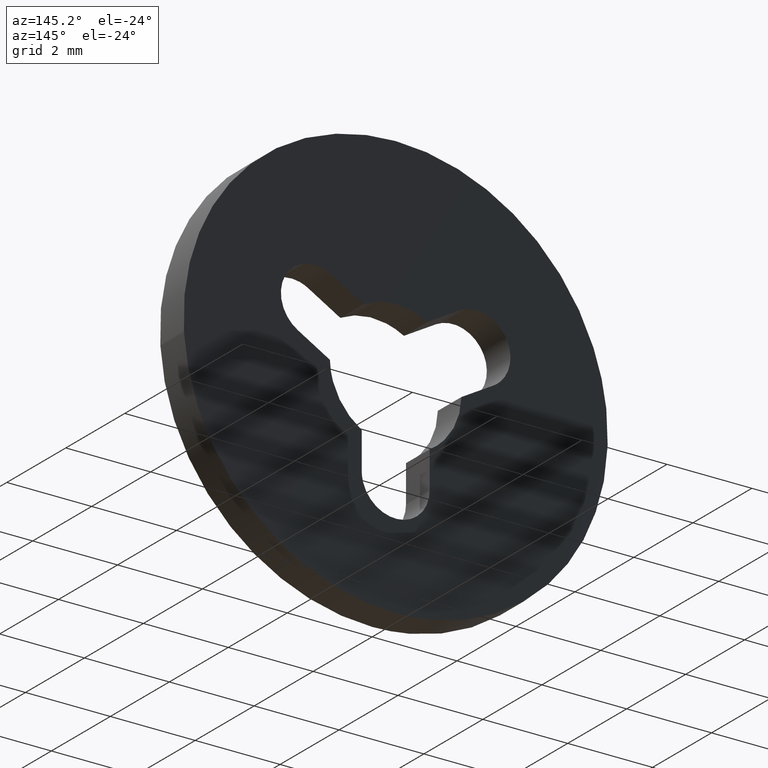
[diagram: clean part render]
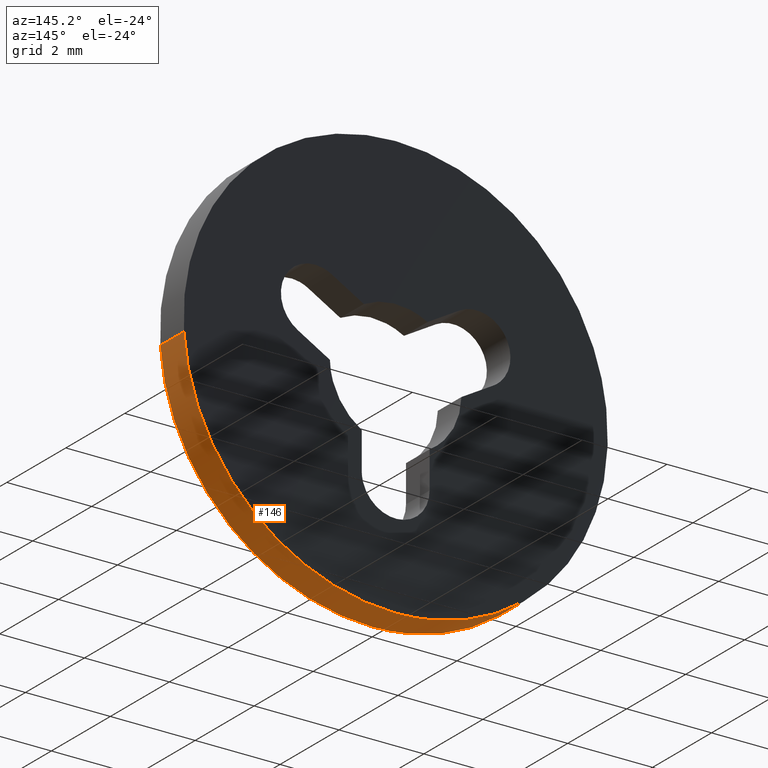
[diagram: same view with one face highlighted and labeled with its STEP entity id]
A machine part, auxiliary view. The second image highlights one B-rep face of the part: STEP entity #146.
In plain terms, the highlighted face is a freeform B-spline surface patch.
Its self-contained STEP definition (entity closure, byte-faithful):
#44=CARTESIAN_POINT('',(-4.965047631818332,0.820000000000024,0.590171173283792));
#45=CARTESIAN_POINT('',(-4.981938077243028,0.820000000000024,0.448073643189888));
#46=CARTESIAN_POINT('',(-4.990673992109334,0.820000000000024,0.305242697674285));
#47=CARTESIAN_POINT('',(-5.295916689783620,0.820000000000024,-4.685431294435048));
#48=CARTESIAN_POINT('',(-0.305242697674285,0.820000000000024,-4.990673992109334));
#49=CARTESIAN_POINT('',(4.685431294435048,0.820000000000024,-5.295916689783620));
#50=CARTESIAN_POINT('',(4.990673992109334,0.820000000000024,-0.305242697674285));
#51=CARTESIAN_POINT('',(-4.965047631818332,-0.020500000000001,0.590171173283792));
#52=CARTESIAN_POINT('',(-4.981938077243028,-0.020500000000001,0.448073643189888));
#53=CARTESIAN_POINT('',(-4.990673992109334,-0.020500000000001,0.305242697674285));
#54=CARTESIAN_POINT('',(-5.295916689783620,-0.020500000000001,-4.685431294435048));
#55=CARTESIAN_POINT('',(-0.305242697674285,-0.020500000000001,-4.990673992109334));
#56=CARTESIAN_POINT('',(4.685431294435048,-0.020500000000001,-5.295916689783620));
#57=CARTESIAN_POINT('',(4.990673992109334,-0.020500000000001,-0.305242697674285));
#65=(BOUNDED_SURFACE()B_SPLINE_SURFACE(2,1,((#44,#51),(#45,#52),(#46,#53),(#47,#54),(#48,#55),(#49,#56),(#50,#57)),.UNSPECIFIED.,.F.,.F.,.U.)B_SPLINE_SURFACE_WITH_KNOTS((3,2,2,3),(2,2),(0.0,0.331370849898476,8.615642097360375,16.899913344822270),(0.0,1.0),.UNSPECIFIED.)GEOMETRIC_REPRESENTATION_ITEM()RATIONAL_B_SPLINE_SURFACE(((0.977505800795127,0.977505800795127),(0.988284271247462,0.988284271247462),(1.0,1.0),(0.707106781186548,0.707106781186548),(1.0,1.0),(0.707106781186548,0.707106781186548),(1.0,1.0)))REPRESENTATION_ITEM('')SURFACE());
#66=CARTESIAN_POINT('',(-4.965048007634929,3.045997E-014,0.590168011561354));
#67=VERTEX_POINT('',#66);
#68=CARTESIAN_POINT('',(0.0,0.0,-5.0));
#69=VERTEX_POINT('',#68);
#70=CARTESIAN_POINT('',(-4.965048007634929,3.045997E-014,0.590168011561354));
#71=CARTESIAN_POINT('',(-5.000000000000001,0.0,0.296119000685819));
#72=CARTESIAN_POINT('',(-5.0,0.0,0.0));
#73=CARTESIAN_POINT('',(-5.000000000000001,0.0,-5.000000000000001));
#74=CARTESIAN_POINT('',(0.0,0.0,-5.0));
#82=(BOUNDED_CURVE()B_SPLINE_CURVE(2,(#70,#71,#72,#73,#74),.UNSPECIFIED.,.F.,.U.)B_SPLINE_CURVE_WITH_KNOTS((3,2,3),(0.229562581136241,0.250000000000000,0.500000000000000),.UNSPECIFIED.)CURVE()GEOMETRIC_REPRESENTATION_ITEM()RATIONAL_B_SPLINE_CURVE((0.956026965128767,0.976056074419019,1.0,0.707106781186548,1.0))REPRESENTATION_ITEM(''));
#83=EDGE_CURVE('',#67,#69,#82,.T.);
#84=ORIENTED_EDGE('',*,*,#83,.F.);
#85=CARTESIAN_POINT('',(-4.965048002999415,0.800000000000023,0.590168050559857));
#86=VERTEX_POINT('',#85);
#87=CARTESIAN_POINT('',(-4.965048002999415,0.800000000000023,0.590168050559857));
#88=CARTESIAN_POINT('',(-4.965048007634929,3.045997E-014,0.590168011561354));
#89=QUASI_UNIFORM_CURVE('',1,(#87,#88),.UNSPECIFIED.,.F.,.U.);
#90=EDGE_CURVE('',#86,#67,#89,.T.);
#91=ORIENTED_EDGE('',*,*,#90,.F.);
#92=CARTESIAN_POINT('',(0.0,0.800000000000023,-5.0));
#93=VERTEX_POINT('',#92);
#94=CARTESIAN_POINT('',(-4.965048002999415,0.800000000000023,0.590168050559856));
#95=CARTESIAN_POINT('',(-5.0,0.800000000000023,0.296119020391210));
#96=CARTESIAN_POINT('',(-5.0,0.800000000000023,0.0));
#97=CARTESIAN_POINT('',(-5.000000000000001,0.800000000000023,-5.000000000000001));
#98=CARTESIAN_POINT('',(0.0,0.800000000000023,-5.0));
#106=(BOUNDED_CURVE()B_SPLINE_CURVE(2,(#94,#95,#96,#97,#98),.UNSPECIFIED.,.F.,.U.)B_SPLINE_CURVE_WITH_KNOTS((3,2,3),(0.229562579808786,0.250000000000000,0.500000000000000),.UNSPECIFIED.)CURVE()GEOMETRIC_REPRESENTATION_ITEM()RATIONAL_B_SPLINE_CURVE((0.956026962526900,0.976056072863809,1.0,0.707106781186548,1.0))REPRESENTATION_ITEM(''));
#107=EDGE_CURVE('',#86,#93,#106,.T.);
#108=ORIENTED_EDGE('',*,*,#107,.T.);
#109=CARTESIAN_POINT('',(4.990674099992546,0.800000000000023,-0.305240933789139));
#110=VERTEX_POINT('',#109);
#111=CARTESIAN_POINT('',(0.0,0.800000000000023,-5.0));
#112=CARTESIAN_POINT('',(4.703532000033385,0.800000000000023,-5.000000000000001));
#113=CARTESIAN_POINT('',(4.990674099992546,0.800000000000023,-0.305240933789139));
#121=(BOUNDED_CURVE()B_SPLINE_CURVE(2,(#111,#112,#113),.UNSPECIFIED.,.F.,.U.)B_SPLINE_CURVE_WITH_KNOTS((3,3),(0.500000000000000,0.739333023226263),.UNSPECIFIED.)CURVE()GEOMETRIC_REPRESENTATION_ITEM()RATIONAL_B_SPLINE_CURVE((1.0,0.719603921835620,0.976072172374189))REPRESENTATION_ITEM(''));
#122=EDGE_CURVE('',#93,#110,#121,.T.);
#123=ORIENTED_EDGE('',*,*,#122,.T.);
#124=CARTESIAN_POINT('',(4.990674101339240,2.014708E-014,-0.305240911770624));
#125=VERTEX_POINT('',#124);
#126=CARTESIAN_POINT('',(4.990674099992546,0.800000000000023,-0.305240933789139));
#127=CARTESIAN_POINT('',(4.990674101339240,2.014708E-014,-0.305240911770624));
#128=QUASI_UNIFORM_CURVE('',1,(#126,#127),.UNSPECIFIED.,.F.,.U.);
#129=EDGE_CURVE('',#110,#125,#128,.T.);
#130=ORIENTED_EDGE('',*,*,#129,.T.);
#131=CARTESIAN_POINT('',(0.0,0.0,-5.0));
#132=CARTESIAN_POINT('',(4.703532020823824,0.0,-4.999999999999999));
#133=CARTESIAN_POINT('',(4.990674101339240,2.014708E-014,-0.305240911770624));
#141=(BOUNDED_CURVE()B_SPLINE_CURVE(2,(#131,#132,#133),.UNSPECIFIED.,.F.,.U.)B_SPLINE_CURVE_WITH_KNOTS((3,3),(0.500000000000000,0.739333023987528),.UNSPECIFIED.)CURVE()GEOMETRIC_REPRESENTATION_ITEM()RATIONAL_B_SPLINE_CURVE((1.0,0.719603920943743,0.976072174005725))REPRESENTATION_ITEM(''));
#142=EDGE_CURVE('',#69,#125,#141,.T.);
#143=ORIENTED_EDGE('',*,*,#142,.F.);
#144=EDGE_LOOP('',(#84,#91,#108,#123,#130,#143));
#145=FACE_OUTER_BOUND('',#144,.T.);
#146=ADVANCED_FACE('',(#145),#65,.T.);